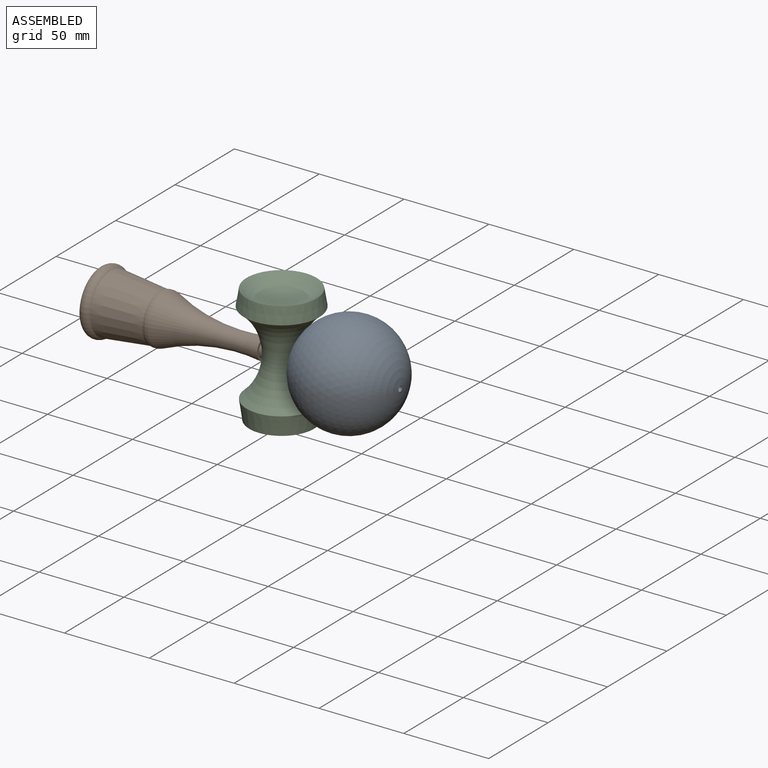
[diagram: assembled view]
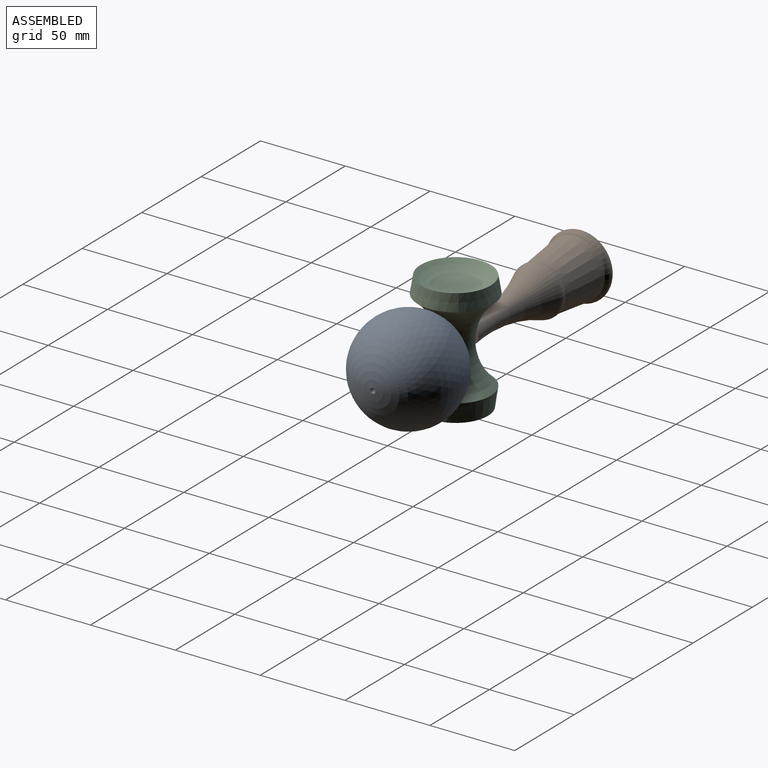
[diagram: assembled view, second angle]
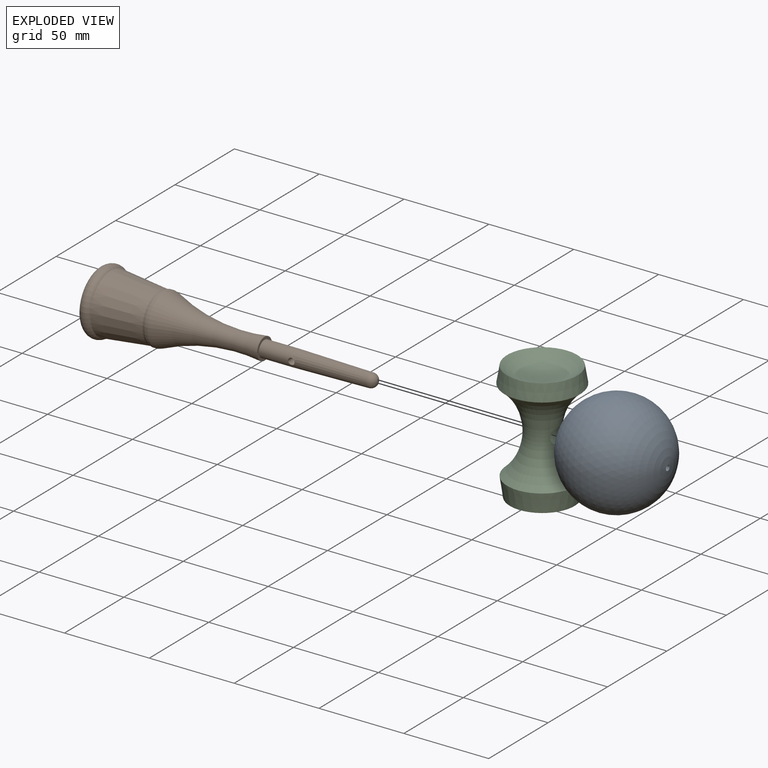
[diagram: exploded view]
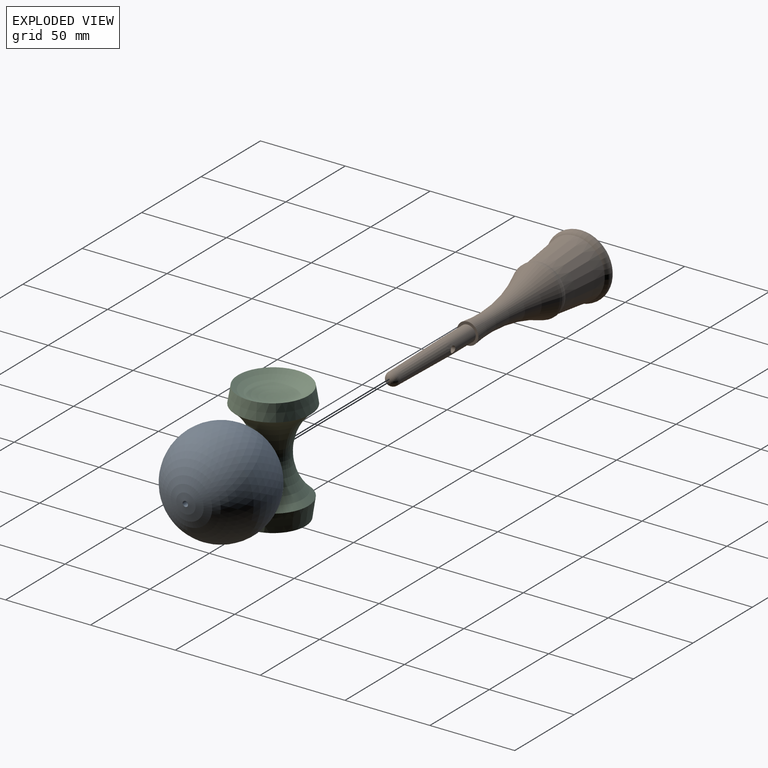
[diagram: exploded view, second angle]
ASSEMBLY  parts=3 mates=2
PART A: 5 faces, bbox 58.7x60.3x60.3 mm
  f0: cylinder r=1.59mm len=3.18mm, axis (-1,0,0), area 31.7mm2, adj f1,f4
  f1: plane 12.7x12.7mm, normal (1,0,0), area 118.8mm2, adj f0,f2
  f2: cylinder r=6.35mm len=50.8mm, axis (-1,0,0), area 2026.8mm2, adj f1,f3
  f3: cone r=6.35mm half-angle=33.7deg, axis (1,0,0), area 285.5mm2, adj f2,f4
  f4: sphere r=30.16mm, area 11132.2mm2, adj f0,f3
PART B: 11 faces, bbox 164.3x79.4x79.4 mm
  f0: cone r=3.97mm half-angle=1.1deg, axis (-1,0,0), area 1164.3mm2, adj f1,f3,f10
  f1: cylinder r=4.76mm len=19.05mm, axis (-1,0,0), area 558.4mm2, adj f0,f4,f10
  f2: sphere r=3.97mm, area 99mm2, adj f3
  f3: cylinder r=3.97mm len=7.94mm, axis (-1,0,0), area 19.8mm2, adj f0,f2
  f4: plane 12.7x12.7mm, normal (1,0,0), area 55.4mm2, adj f1,f5
  f5: torus R=113.21mm, axis (-1,0,0), area 2835.4mm2, adj f4,f6
  f6: torus R=8.95mm, axis (-1,0,0), area 450.7mm2, adj f5,f7
  f7: cone r=14.29mm half-angle=6.3deg, axis (-1,0,0), area 2867.8mm2, adj f6,f8
  f8: torus R=15.08mm, axis (-1,0,0), area 855.8mm2, adj f7,f9
  f9: sphere r=34.92mm, area 1026.8mm2, adj f8
  f10: cylinder r=1.91mm len=9.53mm, axis (0,1,0), area 109mm2, adj f0,f1
PART C: 6 faces, bbox 69.9x88.6x88.6 mm
  f0: torus R=40.95mm, axis (1,0,0), area 4692mm2, adj f3,f4,f5
  f1: sphere r=34.92mm, area 1481.1mm2, adj f4
  f2: sphere r=34.92mm, area 1240.5mm2, adj f3
  f3: cone r=20.64mm half-angle=8.1deg, axis (-1,0,0), area 1399.6mm2, adj f0,f2
  f4: cone r=20.64mm half-angle=9.5deg, axis (1,0,0), area 1300.3mm2, adj f0,f1
  f5: cylinder r=4.76mm len=19.83mm, axis (0,-1,0), area 543.8mm2, adj f0
PLACE A rot(axis=(0,1,0),180deg) t=(111.39,4.83,61.22)mm
PLACE B rot(axis=(1,0,0),0deg) t=(-43.58,4.83,-27.91)mm
PLACE C rot(axis=(0.58,0.58,-0.58),120deg) t=(-50.47,-82.69,26.67)mm
MATE slider A.f0 <-> B.f8  axis (-1,0,0) through (-39.24,4.83,50.48)mm
MATE fastened C.f5 <-> B.f8  axis (-1,0,0) through (-60.52,4.83,50.48)mm
